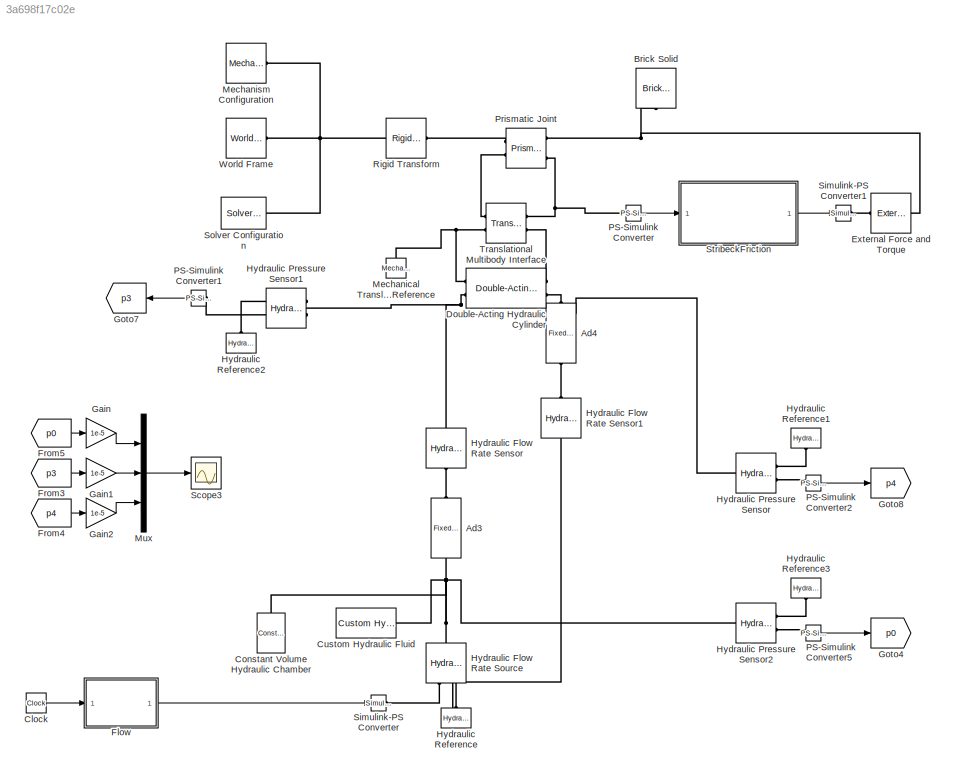
MODEL slx_3a698f17c02e
KIND model
CONFIG AbsTol = auto
CONFIG EnableMultiTasking = off
CONFIG FixedStep = 1e-3
CONFIG MaxStep = auto
CONFIG MinStep = auto
CONFIG RelTol = 1e-3
CONFIG SampleTimeConstraint = Unconstrained
CONFIG SolverName = FixedStepAuto
CONFIG StartTime = 0.0
CONFIG StopTime = 10
WORKSPACE source: MATLAB code (in-file)
WORKSPACE m1 = 5000
WORKSPACE Cd = 0.6
WORKSPACE Ad1 = 9e-6  (= 9e-06)
WORKSPACE Ad2 = 5e-6  (= 5e-06)
WORKSPACE Ad3 = Ad1  (= 9e-06)
WORKSPACE Ad4 = Ad2  (= 5e-06)
WORKSPACE Rho = 875
WORKSPACE Beta = 830
WORKSPACE V0 = 1e-3  (= 0.001)
WORKSPACE x1 = 0
WORKSPACE x1dot = 0
WORKSPACE p0 = 0
BLOCK [Reference] Ad3  REF=sh_lib/Orifices/Fixed Orifice
  NameLocation = right
  Ports = [0, 0, 0, 0, 0, 1, 1]
  SourceBlock = sh_lib/Orifices/Fixed Orifice
  SourceProductBaseCode = SH
  SourceType = Fixed Orifice
BLOCK [Reference] Ad4  REF=sh_lib/Orifices/Fixed Orifice
  NameLocation = right
  Ports = [0, 0, 0, 0, 0, 1, 1]
  SourceBlock = sh_lib/Orifices/Fixed Orifice
  SourceProductBaseCode = SH
  SourceType = Fixed Orifice
BLOCK [Reference] Brick Solid  REF=sm_lib/Body Elements/Brick Solid
  NameLocation = left
  Ports = [0, 0, 0, 0, 0, 0, 1]
  SourceBlock = sm_lib/Body Elements/Brick Solid
  SourceProductBaseCode = MS
  SourceType = Brick Solid
BLOCK [Clock] Clock
BLOCK [Reference] Constant Volume Hydraulic Chamber  REF=fl_lib/Hydraulic/Hydraulic Elements/Constant Volume
Hydraulic Chamber
  NameLocation = left
  Ports = [0, 0, 0, 0, 0, 1]
  SourceBlock = fl_lib/Hydraulic/Hydraulic Elements/Constant Volume\nHydraulic Chamber
  SourceProductBaseCode = SS
  SourceType = Constant Volume\nHydraulic Chamber
BLOCK [Reference] Custom Hydraulic Fluid  REF=fl_lib/Hydraulic/Hydraulic Utilities/Custom Hydraulic
Fluid
  Ports = [0, 0, 0, 0, 0, 0, 1]
  SourceBlock = fl_lib/Hydraulic/Hydraulic Utilities/Custom Hydraulic\nFluid
  SourceProductBaseCode = SS
  SourceType = Custom Hydraulic\nFluid
BLOCK [Reference] Double-Acting Hydraulic Cylinder  REF=sh_lib/Hydraulic Cylinders/Double-Acting
Hydraulic Cylinder
  Ports = [0, 0, 0, 0, 0, 2, 2]
  SourceBlock = sh_lib/Hydraulic Cylinders/Double-Acting\nHydraulic Cylinder
  SourceProductBaseCode = SH
  SourceType = Double-Acting\nHydraulic Cylinder
BLOCK [Reference] External Force and Torque  REF=sm_lib/Forces and
Torques/External Force
and Torque
  Ports = [0, 0, 0, 0, 0, 1, 1]
  SourceBlock = sm_lib/Forces and\nTorques/External Force\nand Torque
  SourceProductBaseCode = MS
  SourceType = External Force\nand Torque
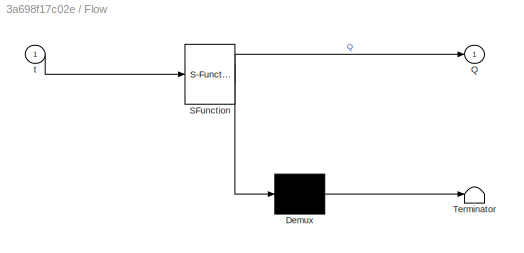
BLOCK [SubSystem] Flow
  ErrorFcn = Stateflow.Translate.translate
  PermitHierarchicalResolution = ExplicitOnly
  Ports = [1, 1]
  RequestExecContextInheritance = off
  SFBlockType = MATLAB Function
  TreatAsAtomicUnit = on
BLOCK [Demux] Flow/ Demux 
  Outputs = 1
  Ports = [1, 1]
BLOCK [S-Function] Flow/ SFunction 
  EnableBusSupport = on
  FunctionName = sf_sfun
  PortCounts = [1 2]
  Ports = [1, 2]
  SFcnIsStateOwnerBlock = off
  SFunctionDeploymentMode = off
  Tag = Stateflow S-Function 2
BLOCK [Terminator] Flow/ Terminator 
BLOCK [Outport] Flow/Q
BLOCK [Inport] Flow/t
BLOCK [From] From3
  GotoTag = p3
BLOCK [From] From4
  GotoTag = p4
BLOCK [From] From5
  GotoTag = p0
BLOCK [Gain] Gain
  Gain = 1e-5
BLOCK [Gain] Gain1
  Gain = 1e-5
BLOCK [Gain] Gain2
  Gain = 1e-5
BLOCK [Goto] Goto4
  GotoTag = p0
BLOCK [Goto] Goto7
  GotoTag = p3
  NameLocation = top
BLOCK [Goto] Goto8
  GotoTag = p4
BLOCK [Reference] Hydraulic Flow Rate Sensor  REF=fl_lib/Hydraulic/Hydraulic Sensors/Hydraulic Flow Rate
Sensor
  NameLocation = right
  Ports = [0, 0, 0, 0, 0, 1, 3]
  SourceBlock = fl_lib/Hydraulic/Hydraulic Sensors/Hydraulic Flow Rate\nSensor
  SourceProductBaseCode = SS
  SourceType = Hydraulic Flow Rate\nSensor
BLOCK [Reference] Hydraulic Flow Rate Sensor1  REF=fl_lib/Hydraulic/Hydraulic Sensors/Hydraulic Flow Rate
Sensor
  NameLocation = left
  Ports = [0, 0, 0, 0, 0, 1, 3]
  SourceBlock = fl_lib/Hydraulic/Hydraulic Sensors/Hydraulic Flow Rate\nSensor
  SourceProductBaseCode = SS
  SourceType = Hydraulic Flow Rate\nSensor
BLOCK [Reference] Hydraulic Flow Rate Source  REF=fl_lib/Hydraulic/Hydraulic Sources/Hydraulic Flow Rate
Source
  NameLocation = right
  Ports = [0, 0, 0, 0, 0, 1, 2]
  SourceBlock = fl_lib/Hydraulic/Hydraulic Sources/Hydraulic Flow Rate\nSource
  SourceProductBaseCode = SS
  SourceType = Hydraulic Flow Rate\nSource
BLOCK [Reference] Hydraulic Pressure Sensor  REF=fl_lib/Hydraulic/Hydraulic Sensors/Hydraulic Pressure
Sensor
  Ports = [0, 0, 0, 0, 0, 1, 2]
  SourceBlock = fl_lib/Hydraulic/Hydraulic Sensors/Hydraulic Pressure\nSensor
  SourceProductBaseCode = SS
  SourceType = Hydraulic Pressure\nSensor
BLOCK [Reference] Hydraulic Pressure Sensor1  REF=fl_lib/Hydraulic/Hydraulic Sensors/Hydraulic Pressure
Sensor
  NameLocation = top
  Ports = [0, 0, 0, 0, 0, 1, 2]
  SourceBlock = fl_lib/Hydraulic/Hydraulic Sensors/Hydraulic Pressure\nSensor
  SourceProductBaseCode = SS
  SourceType = Hydraulic Pressure\nSensor
BLOCK [Reference] Hydraulic Pressure Sensor2  REF=fl_lib/Hydraulic/Hydraulic Sensors/Hydraulic Pressure
Sensor
  Ports = [0, 0, 0, 0, 0, 1, 2]
  SourceBlock = fl_lib/Hydraulic/Hydraulic Sensors/Hydraulic Pressure\nSensor
  SourceProductBaseCode = SS
  SourceType = Hydraulic Pressure\nSensor
BLOCK [Reference] Hydraulic Reference  REF=fl_lib/Hydraulic/Hydraulic Elements/Hydraulic Reference
  NameLocation = right
  Ports = [0, 0, 0, 0, 0, 1]
  SourceBlock = fl_lib/Hydraulic/Hydraulic Elements/Hydraulic Reference
  SourceProductBaseCode = SS
  SourceType = Hydraulic Reference
BLOCK [Reference] Hydraulic Reference1  REF=fl_lib/Hydraulic/Hydraulic Elements/Hydraulic Reference
  NameLocation = left
  Ports = [0, 0, 0, 0, 0, 1]
  SourceBlock = fl_lib/Hydraulic/Hydraulic Elements/Hydraulic Reference
  SourceProductBaseCode = SS
  SourceType = Hydraulic Reference
BLOCK [Reference] Hydraulic Reference2  REF=fl_lib/Hydraulic/Hydraulic Elements/Hydraulic Reference
  NameLocation = right
  Ports = [0, 0, 0, 0, 0, 1]
  SourceBlock = fl_lib/Hydraulic/Hydraulic Elements/Hydraulic Reference
  SourceProductBaseCode = SS
  SourceType = Hydraulic Reference
BLOCK [Reference] Hydraulic Reference3  REF=fl_lib/Hydraulic/Hydraulic Elements/Hydraulic Reference
  NameLocation = left
  Ports = [0, 0, 0, 0, 0, 1]
  SourceBlock = fl_lib/Hydraulic/Hydraulic Elements/Hydraulic Reference
  SourceProductBaseCode = SS
  SourceType = Hydraulic Reference
BLOCK [Reference] Mechanical Translational Reference  REF=fl_lib/Mechanical/Translational
Elements/Mechanical
Translational
Reference
  NameLocation = right
  Ports = [0, 0, 0, 0, 0, 1]
  SourceBlock = fl_lib/Mechanical/Translational\nElements/Mechanical\nTranslational\nReference
  SourceProductBaseCode = SS
  SourceType = Mechanical\nTranslational\nReference
BLOCK [Reference] Mechanism Configuration  REF=sm_lib/Utilities/Mechanism
Configuration
  Ports = [0, 0, 0, 0, 0, 0, 1]
  SourceBlock = sm_lib/Utilities/Mechanism\nConfiguration
  SourceProductBaseCode = MS
  SourceType = Mechanism\nConfiguration
BLOCK [Mux] Mux
  DisplayOption = bar
  Inputs = 3
  Ports = [3, 1]
BLOCK [Reference] PS-Simulink Converter  REF=nesl_utility/PS-Simulink
Converter
  Ports = [0, 1, 0, 0, 0, 1]
  SourceBlock = nesl_utility/PS-Simulink\nConverter
  SourceProductBaseCode = PW,SS
  SourceType = PS-Simulink\nConverter
BLOCK [Reference] PS-Simulink Converter1  REF=nesl_utility/PS-Simulink
Converter
  NameLocation = top
  Ports = [0, 1, 0, 0, 0, 1]
  SourceBlock = nesl_utility/PS-Simulink\nConverter
  SourceProductBaseCode = PW,SS
  SourceType = PS-Simulink\nConverter
BLOCK [Reference] PS-Simulink Converter2  REF=nesl_utility/PS-Simulink
Converter
  Ports = [0, 1, 0, 0, 0, 1]
  SourceBlock = nesl_utility/PS-Simulink\nConverter
  SourceProductBaseCode = PW,SS
  SourceType = PS-Simulink\nConverter
BLOCK [Reference] PS-Simulink Converter5  REF=nesl_utility/PS-Simulink
Converter
  Ports = [0, 1, 0, 0, 0, 1]
  SourceBlock = nesl_utility/PS-Simulink\nConverter
  SourceProductBaseCode = PW,SS
  SourceType = PS-Simulink\nConverter
BLOCK [Reference] Prismatic Joint  REF=sm_lib/Joints/Prismatic
Joint
  Ports = [0, 0, 0, 0, 0, 2, 3]
  SourceBlock = sm_lib/Joints/Prismatic\nJoint
  SourceProductBaseCode = MS
  SourceType = Prismatic\nJoint
BLOCK [Reference] Rigid Transform  REF=sm_lib/Frames and
Transforms/Rigid
Transform
  Ports = [0, 0, 0, 0, 0, 1, 1]
  SourceBlock = sm_lib/Frames and\nTransforms/Rigid\nTransform
  SourceProductBaseCode = MS
  SourceType = Rigid\nTransform
BLOCK [Scope] Scope3
  Floating = off
  NumInputPorts = 1
  Ports = [1]
  ScopeSpecificationString = Simulink.scopes.TimeScopeBlockCfg('CurrentConfiguration', extmgr.ConfigurationSet(extmgr.Configuration('Core','General UI',true),extmgr.Configuration('Core','Source UI',true),extmgr.Configuration('Sources','WiredSimulink',true,'DataLoggingVariableName','ScopeData3'),extmgr.Configuration('Visuals','Time Domain',true,'SerializedDisplays',{struct('MinYLimReal','-20.15454','MaxYLimReal','181.39086','Y...<+1439ch>
BLOCK [Reference] Simulink-PS Converter  REF=nesl_utility/Simulink-PS
Converter
  Ports = [1, 0, 0, 0, 0, 0, 1]
  SourceBlock = nesl_utility/Simulink-PS\nConverter
  SourceProductBaseCode = PW,SS
  SourceType = Simulink-PS\nConverter
BLOCK [Reference] Simulink-PS Converter1  REF=nesl_utility/Simulink-PS
Converter
  Ports = [1, 0, 0, 0, 0, 0, 1]
  SourceBlock = nesl_utility/Simulink-PS\nConverter
  SourceProductBaseCode = PW,SS
  SourceType = Simulink-PS\nConverter
BLOCK [Reference] Solver Configuration  REF=nesl_utility/Solver
Configuration
  Ports = [0, 0, 0, 0, 0, 0, 1]
  SourceBlock = nesl_utility/Solver\nConfiguration
  SourceProductBaseCode = PW,SS
  SourceType = Solver\nConfiguration
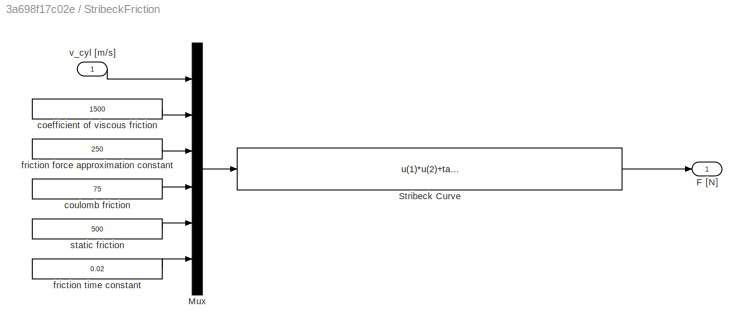
BLOCK [SubSystem] StribeckFriction
  Ports = [1, 1]
  RequestExecContextInheritance = off
  TreatAsAtomicUnit = on
BLOCK [Outport] StribeckFriction/F [N]
  VectorParamsAs1DForOutWhenUnconnected = off
BLOCK [Mux] StribeckFriction/Mux
  DisplayOption = bar
  Inputs = 6
  Ports = [6, 1]
BLOCK [Fcn] StribeckFriction/Stribeck Curve
  Expr = u(1)*u(2)+tanh(u(1)*u(3))*(u(4)+u(5)*exp(-(u(1)*tanh(u(1)*u(3)))/u(6)))
BLOCK [Constant] StribeckFriction/coefficient of viscous friction 
  Value = 1500
BLOCK [Constant] StribeckFriction/coulomb friction
  Value = 75
BLOCK [Constant] StribeckFriction/friction force approximation constant
  Value = 250
BLOCK [Constant] StribeckFriction/friction time constant
  Value = 0.02
BLOCK [Constant] StribeckFriction/static friction
  Value = 500
BLOCK [Inport] StribeckFriction/v_cyl [m//s]
BLOCK [Reference] Translational Multibody Interface  REF=fl_lib/Mechanical/Multibody Interfaces/Translational
Multibody Interface
  Ports = [0, 0, 0, 0, 0, 2, 2]
  SourceBlock = fl_lib/Mechanical/Multibody Interfaces/Translational\nMultibody Interface
  SourceProductBaseCode = SS
  SourceType = Translational\nMultibody Interface
BLOCK [Reference] World Frame  REF=sm_lib/Frames and
Transforms/World Frame
  Ports = [0, 0, 0, 0, 0, 0, 1]
  SourceBlock = sm_lib/Frames and\nTransforms/World Frame
  SourceProductBaseCode = MS
  SourceType = World Frame
LINE Clock:1 -> Flow:1
LINE Flow:1 -> Simulink-PS Converter:1
LINE From3:1 -> Gain1:1
LINE From4:1 -> Gain2:1
LINE From5:1 -> Gain:1
LINE Gain1:1 -> Mux:2
LINE Gain2:1 -> Mux:3
LINE Gain:1 -> Mux:1
LINE Mux:1 -> Scope3:1
LINE PS-Simulink Converter1:1 -> Goto7:1
LINE PS-Simulink Converter2:1 -> Goto8:1
LINE PS-Simulink Converter5:1 -> Goto4:1
LINE PS-Simulink Converter:1 -> StribeckFriction:1
LINE StribeckFriction/Mux:1 -> StribeckFriction/Stribeck Curve:1
LINE StribeckFriction/Stribeck Curve:1 -> StribeckFriction/F [N]:1
LINE StribeckFriction/coefficient of viscous friction :1 -> StribeckFriction/Mux:2
LINE StribeckFriction/coulomb friction:1 -> StribeckFriction/Mux:4
LINE StribeckFriction/friction force approximation constant:1 -> StribeckFriction/Mux:3
LINE StribeckFriction/friction time constant:1 -> StribeckFriction/Mux:6
LINE StribeckFriction/static friction:1 -> StribeckFriction/Mux:5
LINE StribeckFriction/v_cyl [m//s]:1 -> StribeckFriction/Mux:1
LINE StribeckFriction:1 -> Simulink-PS Converter1:1
PNET net1: Ad3:LConn1 -- Constant Volume Hydraulic Chamber:LConn1 -- Custom Hydraulic Fluid:RConn1 -- Hydraulic Flow Rate Source:LConn1 -- Hydraulic Pressure Sensor2:LConn1
PLINE Ad3:RConn1 -- Hydraulic Flow Rate Sensor:LConn1
PNET net2: Ad4:LConn1 -- Double-Acting Hydraulic Cylinder:RConn2 -- Hydraulic Pressure Sensor:LConn1
PLINE Ad4:RConn1 -- Hydraulic Flow Rate Sensor1:LConn1
PNET net3: Brick Solid:RConn1 -- External Force and Torque:RConn1 -- Prismatic Joint:RConn1
PNET net4: Double-Acting Hydraulic Cylinder:LConn1 -- Mechanical Translational Reference:LConn1 -- Translational Multibody Interface:LConn2
PNET net5: Double-Acting Hydraulic Cylinder:LConn2 -- Hydraulic Flow Rate Sensor:RConn2 -- Hydraulic Pressure Sensor1:LConn1
PLINE Double-Acting Hydraulic Cylinder:RConn1 -- Translational Multibody Interface:RConn2
PLINE External Force and Torque:LConn1 -- Simulink-PS Converter1:RConn1
PNET net6: Hydraulic Flow Rate Sensor1:RConn2 -- Hydraulic Flow Rate Source:RConn2 -- Hydraulic Reference:LConn1
PLINE Hydraulic Flow Rate Source:RConn1 -- Simulink-PS Converter:RConn1
PLINE Hydraulic Pressure Sensor1:RConn1 -- Hydraulic Reference2:LConn1
PLINE Hydraulic Pressure Sensor1:RConn2 -- PS-Simulink Converter1:LConn1
PLINE Hydraulic Pressure Sensor2:RConn1 -- Hydraulic Reference3:LConn1
PLINE Hydraulic Pressure Sensor2:RConn2 -- PS-Simulink Converter5:LConn1
PLINE Hydraulic Pressure Sensor:RConn1 -- Hydraulic Reference1:LConn1
PLINE Hydraulic Pressure Sensor:RConn2 -- PS-Simulink Converter2:LConn1
PNET net7: Mechanism Configuration:RConn1 -- Rigid Transform:LConn1 -- Solver Configuration:RConn1 -- World Frame:RConn1
PNET net8: PS-Simulink Converter:LConn1 -- Prismatic Joint:RConn3 -- Translational Multibody Interface:RConn1
PLINE Prismatic Joint:LConn1 -- Rigid Transform:RConn1
PLINE Prismatic Joint:LConn2 -- Translational Multibody Interface:LConn1
note: PNET lines group multi-terminal physical nets as a canonical sorted terminal list (undirected conserving connections); 2-terminal nets keep the pairwise PLINE form
CHART Flow states=1 transitions=1
  STATE_LABEL 'eML_blk_kernel()'
  STATE_LABEL 'SCRIPT:\nfunction Q = fcn(t)\nQmax = 25*1/60e3; %L/min\ntramp = 0.25;\nt1 = 0.25;\nt2 = 1.25;\nt3 = 1.5;\n\nif t<t1\n    Q = Qmax/tramp * t;\nelseif t<t2\n    Q = Qmax;\nelseif t<t3\n    Q = -Qmax/tramp * (t-t2) + Qmax;\nelse\n    Q = 0;\nend\n'
CHART  states=0 transitions=0
